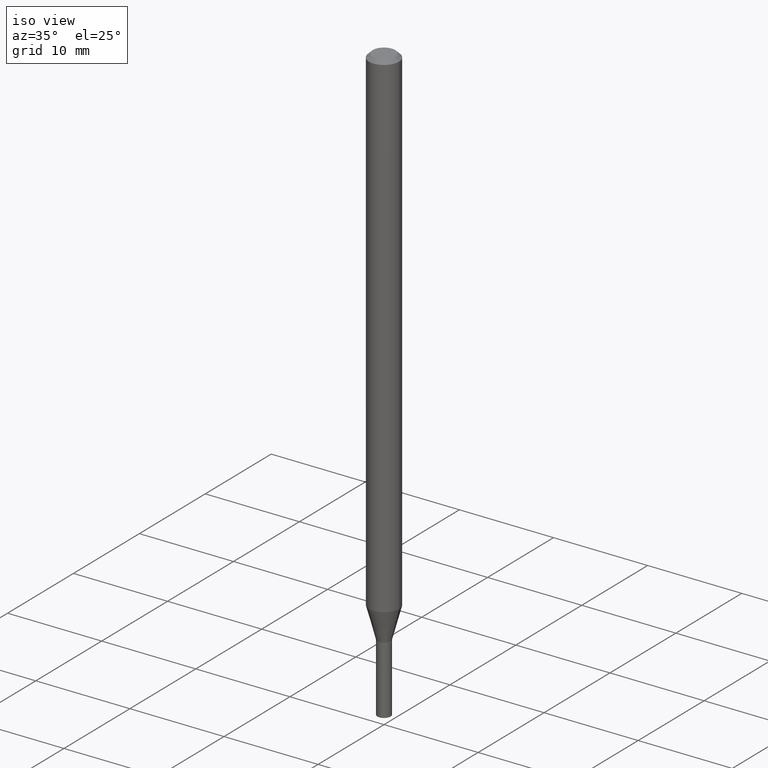
[diagram: clean part render]
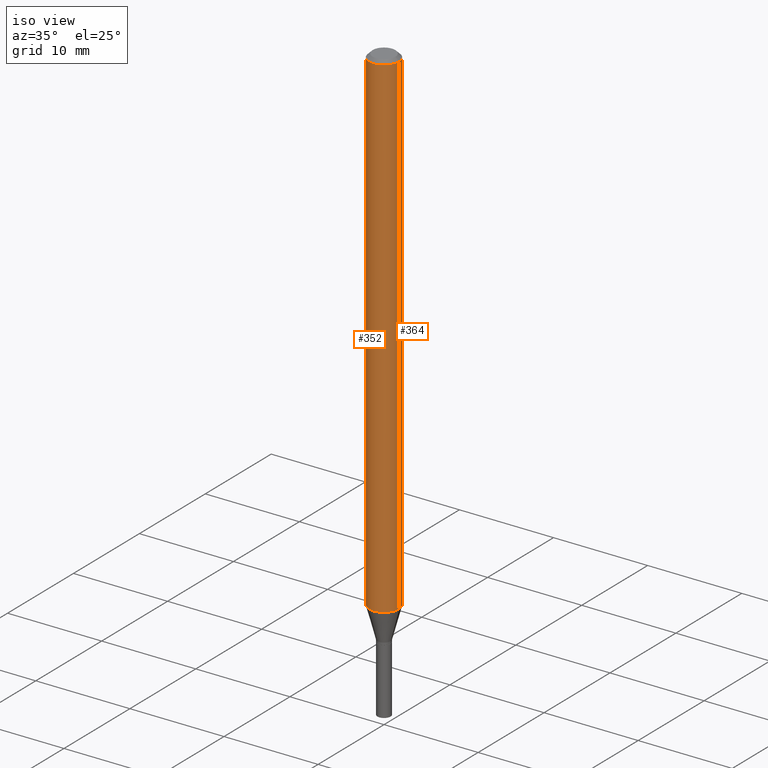
[diagram: same view with one multi-face feature highlighted, each face labeled with its STEP entity id]
A machine part, iso view. The highlighted faces form ONE feature: a constant-radius fillet chain: 2 tangent blend faces with common blend radius 1.5875 mm. The faces share edges in the B-rep.
Their STEP definitions:
[1] entity #352 (Cylinder):
#7 = AXIS2_PLACEMENT_3D ( 'NONE', #426, #383, #307 ) ;
#37 = CIRCLE ( 'NONE', #394, 0.06250000000000000000 ) ;
#40 = VERTEX_POINT ( 'NONE', #301 ) ;
#47 = DIRECTION ( 'NONE',  ( 1.000000000000000000, -6.982962677686266711E-15, 0.000000000000000000 ) ) ;
#58 = ORIENTED_EDGE ( 'NONE', *, *, #166, .F. ) ;
#91 = CARTESIAN_POINT ( 'NONE',  ( 0.06250000000000000000, -4.364351673553916694E-16, 3.047610484872459871E-30 ) ) ;
#134 = CARTESIAN_POINT ( 'NONE',  ( 5.097281921544810220E-29, -7.277567664279129507E-15, -2.084378221735090797 ) ) ;
#146 = VERTEX_POINT ( 'NONE', #278 ) ;
#161 = FACE_OUTER_BOUND ( 'NONE', #416, .T. ) ;
#165 = CARTESIAN_POINT ( 'NONE',  ( 3.668203209277705088E-31, -5.237222008264718399E-17, -0.01499999999999999944 ) ) ;
#166 = EDGE_CURVE ( 'NONE', #40, #240, #242, .T. ) ;
#171 = CARTESIAN_POINT ( 'NONE',  ( -0.06250000000000000000, -3.220880732330825874E-15, -0.01499999999999999944 ) ) ;
#172 = EDGE_CURVE ( 'NONE', #223, #146, #238, .T. ) ;
#174 = CARTESIAN_POINT ( 'NONE',  ( 0.06250000000000000000, -7.714002831634521177E-15, -2.084378221735090797 ) ) ;
#201 = VECTOR ( 'NONE', #458, 39.37007874015748143 ) ;
#202 = AXIS2_PLACEMENT_3D ( 'NONE', #134, #391, #211 ) ;
#211 = DIRECTION ( 'NONE',  ( 1.000000000000000000, -6.982962677686262766E-15, 0.000000000000000000 ) ) ;
#213 = EDGE_CURVE ( 'NONE', #40, #223, #251, .T. ) ;
#223 = VERTEX_POINT ( 'NONE', #174 ) ;
#226 = EDGE_CURVE ( 'NONE', #240, #146, #37, .T. ) ;
#238 = LINE ( 'NONE', #91, #367 ) ;
#240 = VERTEX_POINT ( 'NONE', #171 ) ;
#242 = LINE ( 'NONE', #321, #201 ) ;
#251 = CIRCLE ( 'NONE', #202, 0.06250000000000000000 ) ;
#278 = CARTESIAN_POINT ( 'NONE',  ( 0.06250000000000000000, -4.888073874380388472E-16, -0.01499999999999999944 ) ) ;
#290 = ORIENTED_EDGE ( 'NONE', *, *, #213, .T. ) ;
#301 = CARTESIAN_POINT ( 'NONE',  ( -0.06250000000000000000, -6.833478454429066891E-15, -2.084378221735090797 ) ) ;
#307 = DIRECTION ( 'NONE',  ( 1.000000000000000000, -6.982962677686266711E-15, 4.876176775795935793E-29 ) ) ;
#321 = CARTESIAN_POINT ( 'NONE',  ( -0.06250000000000000000, 4.440892098500626162E-16, -3.074334431409316114E-30 ) ) ;
#352 = ADVANCED_FACE ( 'NONE', ( #161 ), #354, .T. ) ;
#354 = CYLINDRICAL_SURFACE ( 'NONE', #7, 0.06250000000000000000 ) ;
#355 = ORIENTED_EDGE ( 'NONE', *, *, #172, .T. ) ;
#367 = VECTOR ( 'NONE', #423, 39.37007874015748143 ) ;
#372 = ORIENTED_EDGE ( 'NONE', *, *, #226, .F. ) ;
#383 = DIRECTION ( 'NONE',  ( -2.445468806185136597E-29, 3.491481338843145583E-15, 1.000000000000000000 ) ) ;
#391 = DIRECTION ( 'NONE',  ( -2.445468806185136597E-29, 3.491481338843145583E-15, 1.000000000000000000 ) ) ;
#394 = AXIS2_PLACEMENT_3D ( 'NONE', #165, #465, #47 ) ;
#416 = EDGE_LOOP ( 'NONE', ( #58, #290, #355, #372 ) ) ;
#423 = DIRECTION ( 'NONE',  ( -2.445468806185136877E-29, 3.491481338843145188E-15, 1.000000000000000000 ) ) ;
#426 = CARTESIAN_POINT ( 'NONE',  ( 0.000000000000000000, 0.000000000000000000, 0.000000000000000000 ) ) ;
#458 = DIRECTION ( 'NONE',  ( -2.445468806185136877E-29, 3.491481338843145188E-15, 1.000000000000000000 ) ) ;
#465 = DIRECTION ( 'NONE',  ( -2.445468806185136597E-29, 3.491481338843145583E-15, 1.000000000000000000 ) ) ;
[2] entity #364 (Cylinder):
#5 = DIRECTION ( 'NONE',  ( -2.445468806185136597E-29, 3.491481338843145583E-15, 1.000000000000000000 ) ) ;
#26 = ORIENTED_EDGE ( 'NONE', *, *, #371, .T. ) ;
#40 = VERTEX_POINT ( 'NONE', #301 ) ;
#60 = ORIENTED_EDGE ( 'NONE', *, *, #172, .F. ) ;
#80 = EDGE_CURVE ( 'NONE', #146, #240, #466, .T. ) ;
#91 = CARTESIAN_POINT ( 'NONE',  ( 0.06250000000000000000, -4.364351673553916694E-16, 3.047610484872459871E-30 ) ) ;
#108 = DIRECTION ( 'NONE',  ( 1.000000000000000000, -6.982962677686266711E-15, 4.876176775795935793E-29 ) ) ;
#126 = AXIS2_PLACEMENT_3D ( 'NONE', #221, #173, #108 ) ;
#146 = VERTEX_POINT ( 'NONE', #278 ) ;
#156 = DIRECTION ( 'NONE',  ( -2.445468806185136597E-29, 3.491481338843145583E-15, 1.000000000000000000 ) ) ;
#159 = DIRECTION ( 'NONE',  ( 1.000000000000000000, -6.982962677686266711E-15, 0.000000000000000000 ) ) ;
#160 = AXIS2_PLACEMENT_3D ( 'NONE', #415, #156, #159 ) ;
#166 = EDGE_CURVE ( 'NONE', #40, #240, #242, .T. ) ;
#171 = CARTESIAN_POINT ( 'NONE',  ( -0.06250000000000000000, -3.220880732330825874E-15, -0.01499999999999999944 ) ) ;
#172 = EDGE_CURVE ( 'NONE', #223, #146, #238, .T. ) ;
#173 = DIRECTION ( 'NONE',  ( -2.445468806185136597E-29, 3.491481338843145583E-15, 1.000000000000000000 ) ) ;
#174 = CARTESIAN_POINT ( 'NONE',  ( 0.06250000000000000000, -7.714002831634521177E-15, -2.084378221735090797 ) ) ;
#181 = ORIENTED_EDGE ( 'NONE', *, *, #166, .T. ) ;
#201 = VECTOR ( 'NONE', #458, 39.37007874015748143 ) ;
#221 = CARTESIAN_POINT ( 'NONE',  ( 0.000000000000000000, 0.000000000000000000, 0.000000000000000000 ) ) ;
#223 = VERTEX_POINT ( 'NONE', #174 ) ;
#238 = LINE ( 'NONE', #91, #367 ) ;
#240 = VERTEX_POINT ( 'NONE', #171 ) ;
#242 = LINE ( 'NONE', #321, #201 ) ;
#253 = CYLINDRICAL_SURFACE ( 'NONE', #126, 0.06250000000000000000 ) ;
#278 = CARTESIAN_POINT ( 'NONE',  ( 0.06250000000000000000, -4.888073874380388472E-16, -0.01499999999999999944 ) ) ;
#288 = AXIS2_PLACEMENT_3D ( 'NONE', #324, #5, #330 ) ;
#295 = FACE_OUTER_BOUND ( 'NONE', #335, .T. ) ;
#301 = CARTESIAN_POINT ( 'NONE',  ( -0.06250000000000000000, -6.833478454429066891E-15, -2.084378221735090797 ) ) ;
#321 = CARTESIAN_POINT ( 'NONE',  ( -0.06250000000000000000, 4.440892098500626162E-16, -3.074334431409316114E-30 ) ) ;
#324 = CARTESIAN_POINT ( 'NONE',  ( 5.097281921544810220E-29, -7.277567664279129507E-15, -2.084378221735090797 ) ) ;
#330 = DIRECTION ( 'NONE',  ( 1.000000000000000000, -6.982962677686262766E-15, 0.000000000000000000 ) ) ;
#335 = EDGE_LOOP ( 'NONE', ( #26, #181, #356, #60 ) ) ;
#356 = ORIENTED_EDGE ( 'NONE', *, *, #80, .F. ) ;
#364 = ADVANCED_FACE ( 'NONE', ( #295 ), #253, .T. ) ;
#367 = VECTOR ( 'NONE', #423, 39.37007874015748143 ) ;
#371 = EDGE_CURVE ( 'NONE', #223, #40, #434, .T. ) ;
#415 = CARTESIAN_POINT ( 'NONE',  ( 3.668203209277705088E-31, -5.237222008264718399E-17, -0.01499999999999999944 ) ) ;
#423 = DIRECTION ( 'NONE',  ( -2.445468806185136877E-29, 3.491481338843145188E-15, 1.000000000000000000 ) ) ;
#434 = CIRCLE ( 'NONE', #288, 0.06250000000000000000 ) ;
#458 = DIRECTION ( 'NONE',  ( -2.445468806185136877E-29, 3.491481338843145188E-15, 1.000000000000000000 ) ) ;
#466 = CIRCLE ( 'NONE', #160, 0.06250000000000000000 ) ;